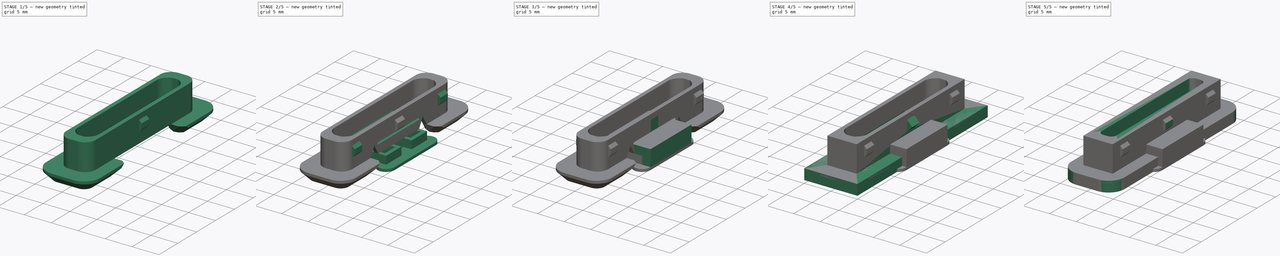
[diagram: build sequence overview — one tinted view per stage of 5, left to right]
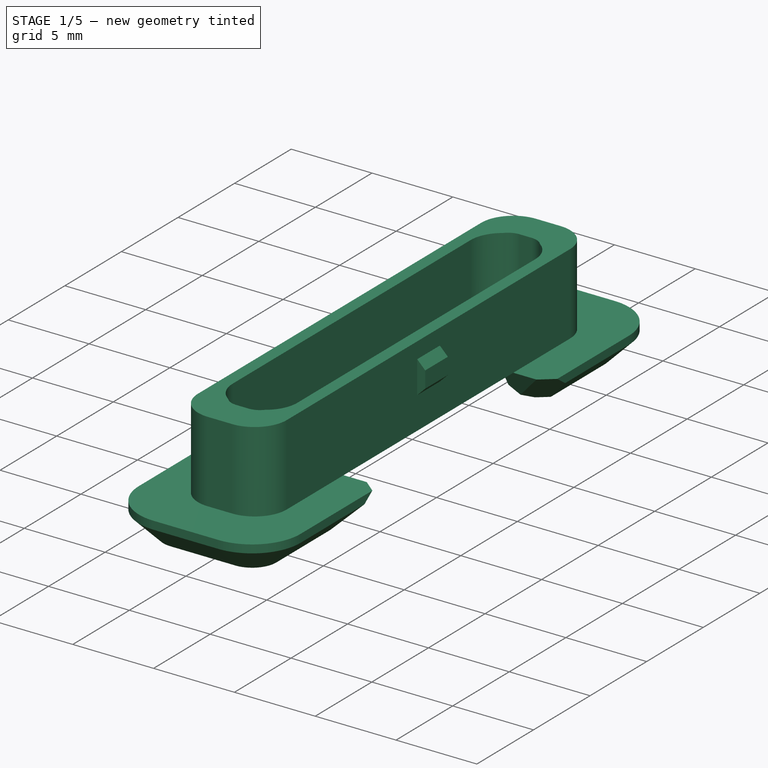
[diagram: stage 1 of 5 — iso view after this stage's code; geometry added in this stage tinted green]
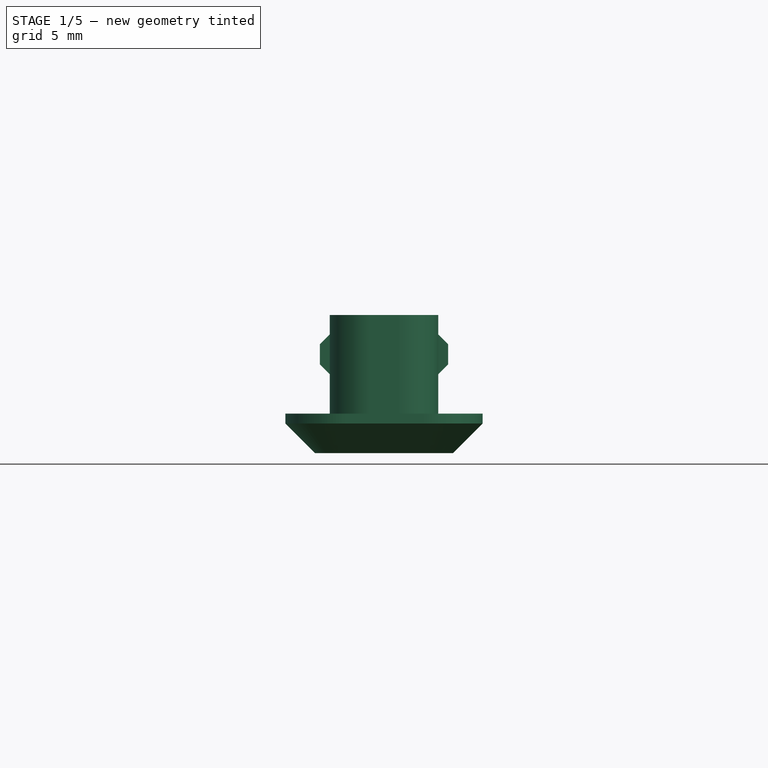
[diagram: stage 1 of 5 — front view after this stage's code; geometry added in this stage tinted green]
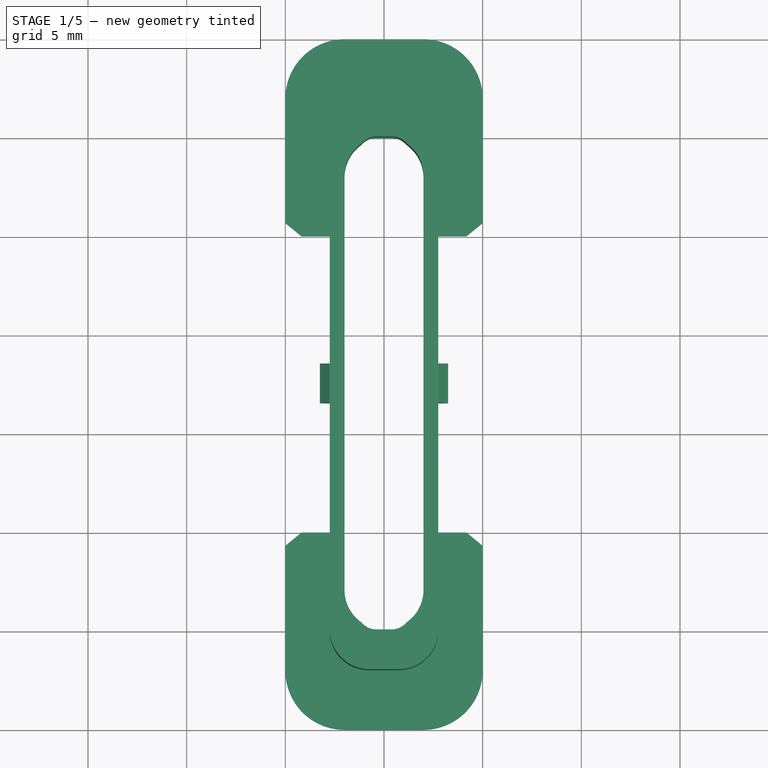
[diagram: stage 1 of 5 — top view after this stage's code; geometry added in this stage tinted green]
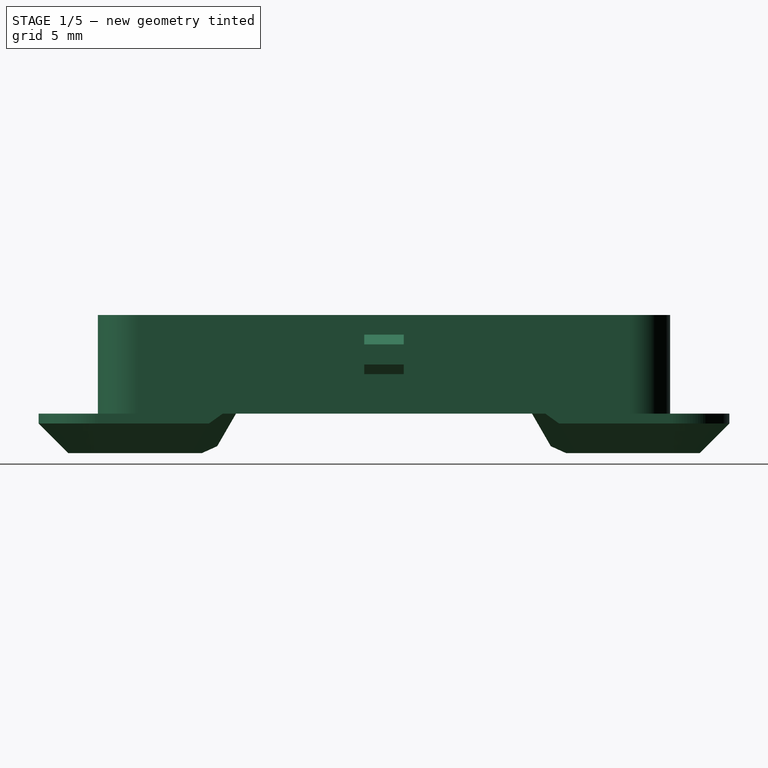
[diagram: stage 1 of 5 — right view after this stage's code; geometry added in this stage tinted green]
FCSTD DOCUMENT  (FreeCAD 0.16R5861 (Git))
Label: sd_card_bezel_v0.8
License: All rights reserved
LicenseURL: http://en.wikipedia.org/wiki/All_rights_reserved
objects: Sketcher::SketchObject×17, PartDesign::Pad×10, PartDesign::Chamfer×6, PartDesign::Pocket×5, PartDesign::Fillet×3, Part::Feature×2
note: 58 computed .brp shape members not serialized (recipe doc carries the construction recipe); baked Part::Feature solids carry a one-line shape summary decoded from their .brp

FEATURE [Part::Feature] Fillet001001  label="Fillet002"
  shape: bbox 10 x 35 x 7 mm, 37 faces (baked)
FEATURE [PartDesign::Fillet] Fillet001002
  Base = -> Fillet001001 [Edge36,Edge31,Edge29,Edge38]
  Radius = 2
FEATURE [PartDesign::Chamfer] Chamfer002
  Base = -> Fillet001002 [Edge41,Edge44,Edge48,Edge52,Edge56,Edge54,Edge50,Edge46,Edge89,Edge90,Edge91,Edge92,Edge93,Edge94,Edge95,Edge96]
  Size = 1.5
FEATURE [Sketcher::SketchObject] Sketch007
  ExternalGeometry = -> [Chamfer002]
  Support = -> Chamfer002 [Face8]
  sketch-geometry (6):
    g0: ArcOfCircle CenterX=5 CenterY=-28 CenterZ=0 NormalX=0 NormalY=0 NormalZ=1 Radius=2 StartAngle=3.14159 EndAngle=6.28319
    g1: ArcOfCircle CenterX=5 CenterY=-7 CenterZ=0 NormalX=0 NormalY=0 NormalZ=1 Radius=2 StartAngle=0 EndAngle=3.14159
    g2: LineSegment StartX=7 StartY=-28 StartZ=0 EndX=7 EndY=-7 EndZ=0
    g3: LineSegment StartX=3 StartY=-28 StartZ=0 EndX=3 EndY=-7 EndZ=0
    g4: LineSegment [constr] StartX=3 StartY=-32 StartZ=0 EndX=5 EndY=-28 EndZ=0
    g5: LineSegment [constr] StartX=5 StartY=-28 StartZ=0 EndX=7 EndY=-32 EndZ=0
  constraints (14):
    c: Tangent(g0,g3) = 1.5708
    c: Tangent(g0,g2) = -1.5708
    c: Tangent(g2,g1) = -1.5708
    c: Tangent(g3,g1) = 1.5708
    c: Vertical(g2)
    c: Equal(g0,g1)
    c: Coincident(g4,g-4)
    c: Coincident(g4,g0)
    c: Coincident(g4,g5)
    c: Coincident(g5,g-5)
    c: Equal(g5,g4)
    c: DistanceX(g0,g0) = -4
    c: DistanceY(g0,g5) = -4
    c: DistanceY(g2) = 21
FEATURE [PartDesign::Pocket] Pocket001
  Length = 5
  Sketch = -> Sketch007
  Type = 1
FEATURE [Sketcher::SketchObject] Sketch008
  ExternalGeometry = -> [Pocket001]
  Support = -> Pocket001 [Face18]
  sketch-geometry (9):
    g0: ArcOfCircle [constr] CenterX=10 CenterY=0 CenterZ=0 NormalX=0 NormalY=0 NormalZ=1 Radius=2 StartAngle=1.5708 EndAngle=4.71239
    g1: ArcOfCircle [constr] CenterX=25 CenterY=0 CenterZ=0 NormalX=0 NormalY=0 NormalZ=1 Radius=2 StartAngle=4.71239 EndAngle=7.85398
    g2: LineSegment [constr] StartX=10 StartY=-2 StartZ=0 EndX=25 EndY=-2 EndZ=0
    g3: LineSegment StartX=10 StartY=2 StartZ=0 EndX=25 EndY=2 EndZ=0
    g4: LineSegment [constr] StartX=5 StartY=7 StartZ=0 EndX=10 EndY=2 EndZ=0
    g5: LineSegment [constr] StartX=25 StartY=2 StartZ=0 EndX=30 EndY=7 EndZ=0
    g6: LineSegment StartX=10 StartY=2 StartZ=0 EndX=8.8453 EndY=0 EndZ=0
    g7: LineSegment StartX=8.8453 StartY=0 StartZ=0 EndX=26.1547 EndY=0 EndZ=0
    g8: LineSegment StartX=26.1547 StartY=0 StartZ=0 EndX=25 EndY=2 EndZ=0
  constraints (22):
    c: Tangent(g0,g3) = 1.5708
    c: Tangent(g0,g2) = -1.5708
    c: Tangent(g2,g1) = -1.5708
    c: Tangent(g3,g1) = 1.5708
    c: Horizontal(g2)
    c: Equal(g0,g1)
    c: PointOnObject(g0,g-1)
    c: DistanceX(g0,g1) = 15
    c: Radius(g0) = 2
    c: Coincident(g4,g0)
    c: Coincident(g5,g1)
    c: Coincident(g5,g-3)
    c: Equal(g5,g4)
    c: Coincident(g4,g-3)
    c: Coincident(g0,g6)
    c: Coincident(g6,g7)
    c: PointOnObject(g7,g-1)
    c: Horizontal(g7)
    c: Coincident(g7,g8)
    c: Coincident(g8,g1)
    c: Angle(g3,g8) = 2.0944
    c: Angle(g6,g3) = 2.0944
FEATURE [PartDesign::Pocket] Pocket002
  Length = 5
  Sketch = -> Sketch008
  Type = 1
FEATURE [PartDesign::Chamfer] Chamfer003
  Base = -> Pocket002 [Edge168,Edge183,Edge57,Edge53]
  Size = 1
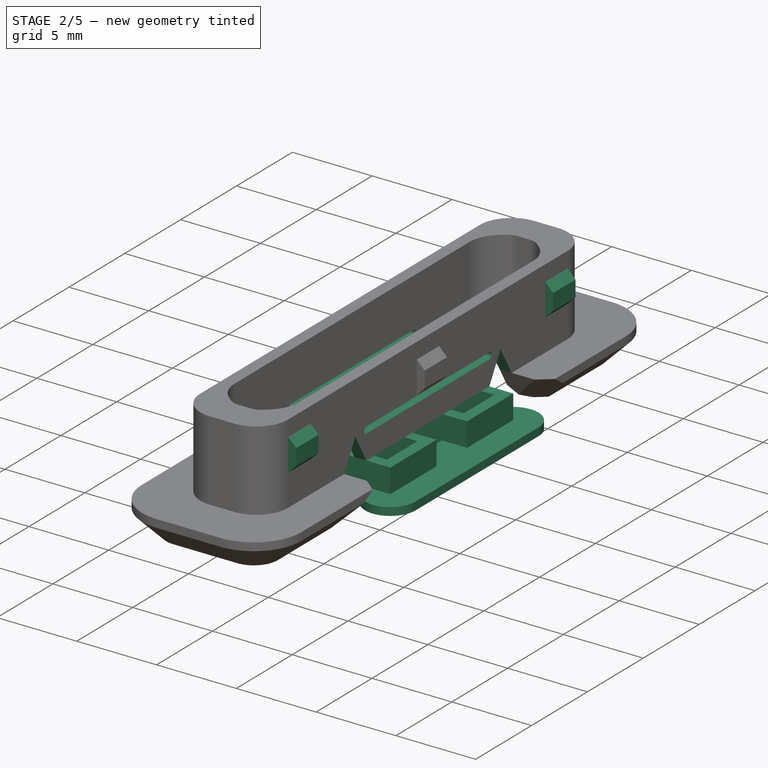
[diagram: stage 2 of 5 — iso view after this stage's code; geometry added in this stage tinted green]
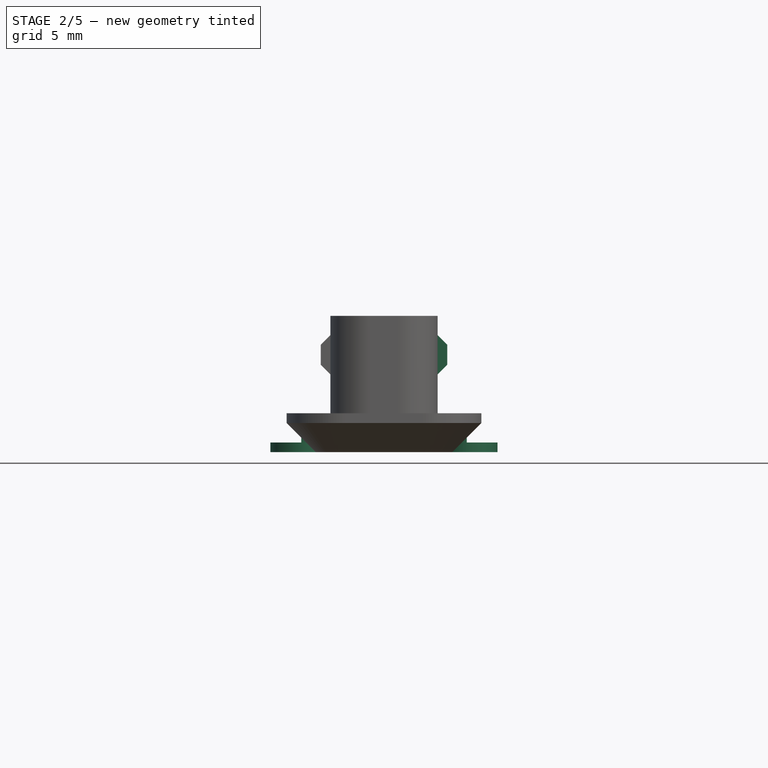
[diagram: stage 2 of 5 — front view after this stage's code; geometry added in this stage tinted green]
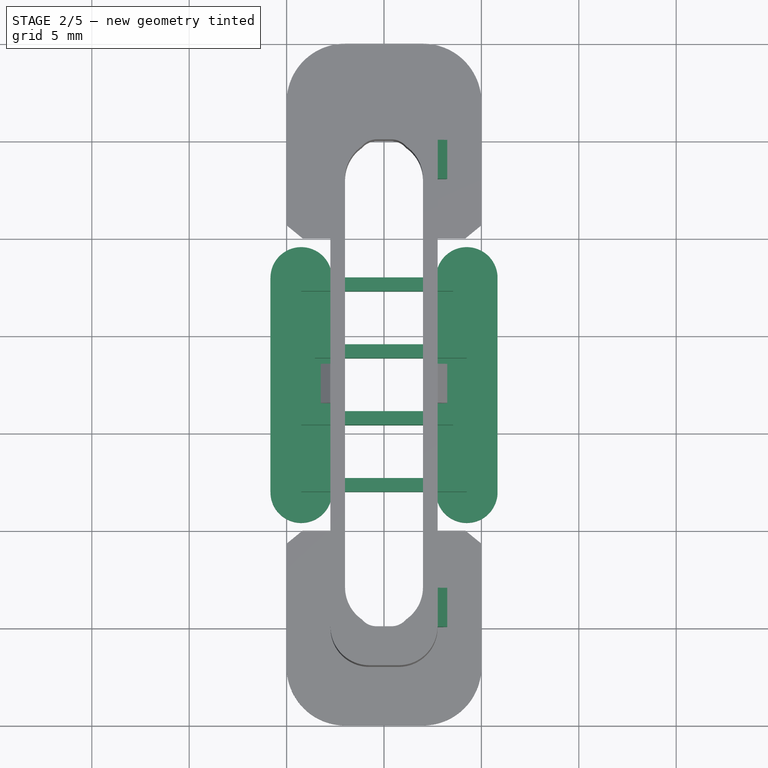
[diagram: stage 2 of 5 — top view after this stage's code; geometry added in this stage tinted green]
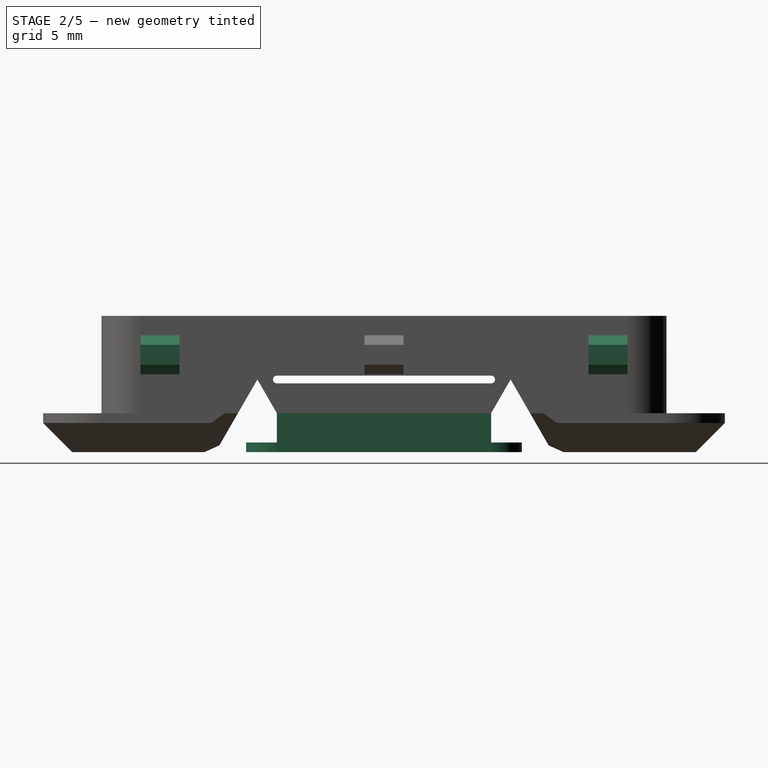
[diagram: stage 2 of 5 — right view after this stage's code; geometry added in this stage tinted green]
FEATURE [Sketcher::SketchObject] Sketch009
  ExternalGeometry = -> [Chamfer003]
  Support = -> Chamfer003 [Face18]
  sketch-geometry (16):
    g0: LineSegment StartX=0.75 StartY=-12.7 StartZ=0 EndX=8.55 EndY=-12.7 EndZ=0
    g1: LineSegment StartX=8.55 StartY=-12.7 StartZ=0 EndX=8.55 EndY=-15.4333 EndZ=0
    g2: LineSegment StartX=8.55 StartY=-15.4333 StartZ=0 EndX=0.75 EndY=-15.4333 EndZ=0
    g3: LineSegment StartX=0.75 StartY=-15.4333 StartZ=0 EndX=0.75 EndY=-19.5667 EndZ=0
    g4: LineSegment StartX=0.75 StartY=-19.5667 StartZ=0 EndX=8.55 EndY=-19.5667 EndZ=0
    g5: LineSegment StartX=8.55 StartY=-19.5667 StartZ=0 EndX=8.55 EndY=-22.3 EndZ=0
    g6: LineSegment StartX=8.55 StartY=-22.3 StartZ=0 EndX=0.75 EndY=-22.3 EndZ=0
    g7: LineSegment StartX=0.75 StartY=-22.3 StartZ=0 EndX=0.75 EndY=-23 EndZ=0
    g8: LineSegment StartX=0.75 StartY=-23 StartZ=0 EndX=9.25 EndY=-23 EndZ=0
    g9: LineSegment StartX=9.25 StartY=-23 StartZ=0 EndX=9.25 EndY=-18.8667 EndZ=0
    g10: LineSegment StartX=9.25 StartY=-18.8667 StartZ=0 EndX=1.45 EndY=-18.8667 EndZ=0
    g11: LineSegment StartX=1.45 StartY=-18.8667 StartZ=0 EndX=1.45 EndY=-16.1333 EndZ=0
    g12: LineSegment StartX=1.45 StartY=-16.1333 StartZ=0 EndX=9.25 EndY=-16.1333 EndZ=0
    g13: LineSegment StartX=9.25 StartY=-16.1333 StartZ=0 EndX=9.25 EndY=-12 EndZ=0
    g14: LineSegment StartX=9.25 StartY=-12 StartZ=0 EndX=0.75 EndY=-12 EndZ=0
    g15: LineSegment StartX=0.75 StartY=-12 StartZ=0 EndX=0.75 EndY=-12.7 EndZ=0
  constraints (49):
    c: Horizontal(g0)
    c: Coincident(g0,g1)
    c: Vertical(g1)
    c: Coincident(g1,g2)
    c: Horizontal(g2)
    c: Coincident(g2,g3)
    c: Vertical(g3)
    c: Coincident(g3,g4)
    c: Horizontal(g4)
    c: Coincident(g4,g5)
    c: Vertical(g5)
    c: Coincident(g5,g6)
    c: Horizontal(g6)
    c: Coincident(g6,g7)
    c: Vertical(g7)
    c: Coincident(g7,g8)
    c: Horizontal(g8)
    c: Coincident(g8,g9)
    c: Vertical(g9)
    c: Coincident(g9,g10)
    c: Horizontal(g10)
    c: Coincident(g10,g11)
    c: Vertical(g11)
    c: Coincident(g11,g12)
    c: Horizontal(g12)
    c: Coincident(g12,g13)
    c: Vertical(g13)
    c: Coincident(g13,g14)
    c: Horizontal(g14)
    c: Coincident(g14,g15)
    c: Coincident(g15,g0)
    c: Vertical(g15)
    c: Equal(g15,g7)
    c: DistanceY(g15) = -0.7
    c: Equal(g0,g2)
    c: Equal(g2,g12)
    c: Equal(g12,g10)
    c: Equal(g10,g4)
    c: Equal(g4,g6)
    c: Equal(g14,g8)
    c: DistanceX(g0,g13) = 0.7
    c: Equal(g11,g1)
    c: Equal(g1,g5)
    c: Equal(g9,g3)
    c: Equal(g3,g13)
    c: DistanceY(g14,g-4) = 2
    c: DistanceY(g-3,g7) = 2
    c: DistanceX(g-3,g7) = -1.5
    c: DistanceX(g-6,g8) = 1.5
FEATURE [PartDesign::Pad] Pad005
  Length = 2
  Length2 = 100
  Sketch = -> Sketch009
  Type = 0
FEATURE [Sketcher::SketchObject] Sketch010
  ExternalGeometry = -> [Pad005]
  Support = -> Pad005 [Face5]
  sketch-geometry (8):
    g0: ArcOfCircle CenterX=0.75 CenterY=-23 CenterZ=0 NormalX=0 NormalY=0 NormalZ=1 Radius=1.58 StartAngle=3.14159 EndAngle=6.28319
    g1: ArcOfCircle CenterX=0.75 CenterY=-12 CenterZ=0 NormalX=0 NormalY=0 NormalZ=1 Radius=1.58 StartAngle=0 EndAngle=3.14159
    g2: LineSegment StartX=2.33 StartY=-23 StartZ=0 EndX=2.33 EndY=-12 EndZ=0
    g3: LineSegment StartX=-0.83 StartY=-23 StartZ=0 EndX=-0.83 EndY=-12 EndZ=0
    g4: ArcOfCircle CenterX=9.25 CenterY=-12 CenterZ=0 NormalX=0 NormalY=0 NormalZ=1 Radius=1.58 StartAngle=0 EndAngle=3.14159
    g5: ArcOfCircle CenterX=9.25 CenterY=-23 CenterZ=0 NormalX=0 NormalY=0 NormalZ=1 Radius=1.58 StartAngle=3.14159 EndAngle=6.28319
    g6: LineSegment StartX=7.67 StartY=-12 StartZ=0 EndX=7.67 EndY=-23 EndZ=0
    g7: LineSegment StartX=10.83 StartY=-12 StartZ=0 EndX=10.83 EndY=-23 EndZ=0
  constraints (18):
    c: Tangent(g0,g3) = 1.5708
    c: Tangent(g0,g2) = -1.5708
    c: Tangent(g2,g1) = -1.5708
    c: Tangent(g3,g1) = 1.5708
    c: Vertical(g2)
    c: Equal(g0,g1)
    c: Coincident(g0,g-6)
    c: Tangent(g4,g7) = 1.5708
    c: Tangent(g4,g6) = -1.5708
    c: Tangent(g6,g5) = -1.5708
    c: Tangent(g7,g5) = 1.5708
    c: Vertical(g6)
    c: Equal(g4,g5)
    c: Coincident(g4,g-4)
    c: Coincident(g-5,g5)
    c: Coincident(g1,g-3)
    c: Equal(g4,g1)
    c: Radius(g4) = 1.58
FEATURE [PartDesign::Pad] Pad006
  Length = 0.5
  Length2 = 100
  Reversed = true
  Sketch = -> Sketch010
  Type = 0
FEATURE [Sketcher::SketchObject] Sketch011
  ExternalGeometry = -> [Pad006]
  Placement = pos=(2.25,0,0) rot=(0.57735,-0.57735,-0.57735;2.0944rad)
  Support = -> Pad006 [Face4]
  sketch-geometry (12):
    g0: LineSegment StartX=-25 StartY=2 StartZ=0 EndX=-24 EndY=3.73205 EndZ=0
    g1: LineSegment StartX=-24 StartY=3.73205 StartZ=0 EndX=-23 EndY=2 EndZ=0
    g2: LineSegment StartX=-12 StartY=2 StartZ=0 EndX=-11 EndY=3.73205 EndZ=0
    g3: LineSegment StartX=-11 StartY=3.73205 StartZ=0 EndX=-10 EndY=2 EndZ=0
    g4: ArcOfCircle CenterX=-23 CenterY=3.73205 CenterZ=0 NormalX=0 NormalY=0 NormalZ=1 Radius=0.2 StartAngle=1.5708 EndAngle=4.71239
    g5: ArcOfCircle CenterX=-12 CenterY=3.73205 CenterZ=0 NormalX=0 NormalY=0 NormalZ=1 Radius=0.2 StartAngle=4.71239 EndAngle=7.85398
    g6: LineSegment StartX=-23 StartY=3.53205 StartZ=0 EndX=-12 EndY=3.53205 EndZ=0
    g7: LineSegment StartX=-23 StartY=3.93205 StartZ=0 EndX=-12 EndY=3.93205 EndZ=0
    g8: LineSegment [constr] StartX=-23 StartY=3.73205 StartZ=0 EndX=-24 EndY=3.73205 EndZ=0
    g9: LineSegment [constr] StartX=-12 StartY=3.73205 StartZ=0 EndX=-11 EndY=3.73205 EndZ=0
    g10: LineSegment StartX=-25 StartY=2 StartZ=0 EndX=-23 EndY=2 EndZ=0
    g11: LineSegment StartX=-12 StartY=2 StartZ=0 EndX=-10 EndY=2 EndZ=0
  constraints (29):
    c: Coincident(g-6,g0)
    c: Coincident(g0,g1)
    c: Coincident(g1,g-6)
    c: Coincident(g-5,g2)
    c: Coincident(g2,g3)
    c: Coincident(g3,g-5)
    c: Tangent(g-4,g3)
    c: Tangent(g0,g-3)
    c: Equal(g2,g3)
    c: Equal(g3,g1)
    c: Equal(g1,g0)
    c: Tangent(g4,g7) = 1.5708
    c: Tangent(g4,g6) = -1.5708
    c: Tangent(g6,g5) = -1.5708
    c: Tangent(g7,g5) = 1.5708
    c: Horizontal(g6)
    c: Equal(g4,g5)
    c: Coincident(g8,g4)
    c: Coincident(g8,g0)
    c: Coincident(g9,g5)
    c: Coincident(g9,g2)
    c: Horizontal(g9)
    c: Equal(g9,g8)
    c: Radius(g4) = 0.2
    c: DistanceX(g9) = 1
    c: Coincident(g10,g0)
    c: Coincident(g10,g1)
    c: Coincident(g11,g2)
    c: Coincident(g11,g3)
FEATURE [PartDesign::Pocket] Pocket003
  Length = 5
  Sketch = -> Sketch011
  Type = 1
FEATURE [Sketcher::SketchObject] Sketch012
  ExternalGeometry = -> [Pocket003]
  Placement = pos=(7.75,0,0) rot=(0.57735,0.57735,0.57735;2.0944rad)
  Support = -> Pocket003 [Face51]
  sketch-geometry (8):
    g0: LineSegment StartX=5 StartY=6 StartZ=0 EndX=7 EndY=6 EndZ=0
    g1: LineSegment StartX=7 StartY=6 StartZ=0 EndX=7 EndY=4 EndZ=0
    g2: LineSegment StartX=7 StartY=4 StartZ=0 EndX=5 EndY=4 EndZ=0
    g3: LineSegment StartX=5 StartY=4 StartZ=0 EndX=5 EndY=6 EndZ=0
    g4: LineSegment StartX=30 StartY=6 StartZ=0 EndX=28 EndY=6 EndZ=0
    g5: LineSegment StartX=28 StartY=6 StartZ=0 EndX=28 EndY=4 EndZ=0
    g6: LineSegment StartX=28 StartY=4 StartZ=0 EndX=30 EndY=4 EndZ=0
    g7: LineSegment StartX=30 StartY=4 StartZ=0 EndX=30 EndY=6 EndZ=0
  constraints (24):
    c: Coincident(g0,g1)
    c: Coincident(g1,g2)
    c: Coincident(g2,g3)
    c: Coincident(g3,g0)
    c: Horizontal(g0)
    c: Horizontal(g2)
    c: Vertical(g1)
    c: Vertical(g3)
    c: PointOnObject(g0,g-4)
    c: PointOnObject(g-6,g2)
    c: PointOnObject(g-3,g0)
    c: Equal(g0,g-3)
    c: Coincident(g4,g5)
    c: Coincident(g5,g6)
    c: Coincident(g6,g7)
    c: Coincident(g7,g4)
    c: Horizontal(g4)
    c: Horizontal(g6)
    c: Vertical(g5)
    c: Vertical(g7)
    c: PointOnObject(g4,g-7)
    c: Equal(g4,g0)
    c: PointOnObject(g4,g0)
    c: PointOnObject(g5,g2)
FEATURE [PartDesign::Pad] Pad007
  Length = 0.5
  Length2 = 100
  Sketch = -> Sketch012
  Type = 0
FEATURE [PartDesign::Chamfer] Chamfer004
  Base = -> Pad007 [Edge420,Edge415,Edge408,Edge412]
  Size = 0.49
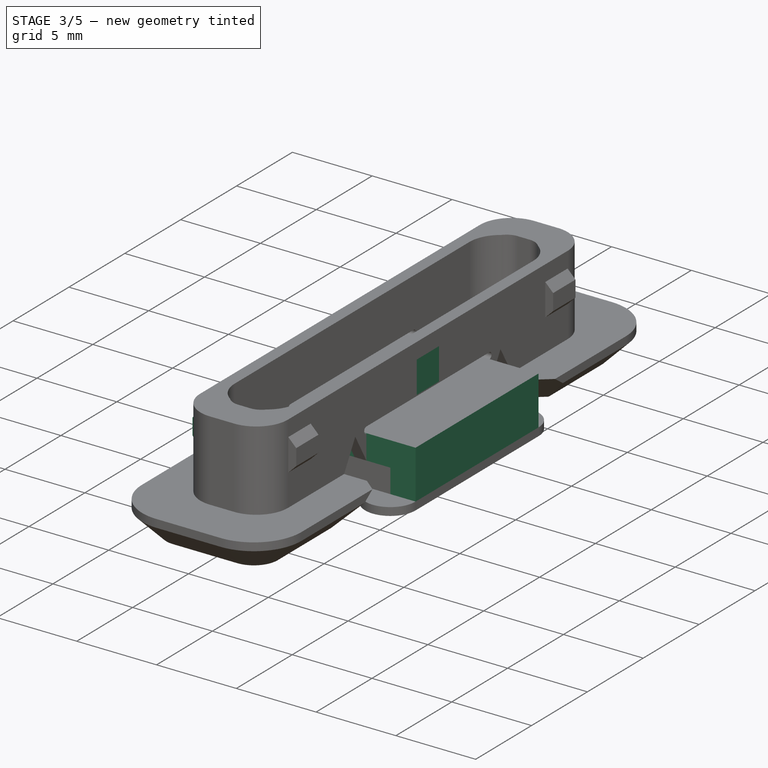
[diagram: stage 3 of 5 — iso view after this stage's code; geometry added in this stage tinted green]
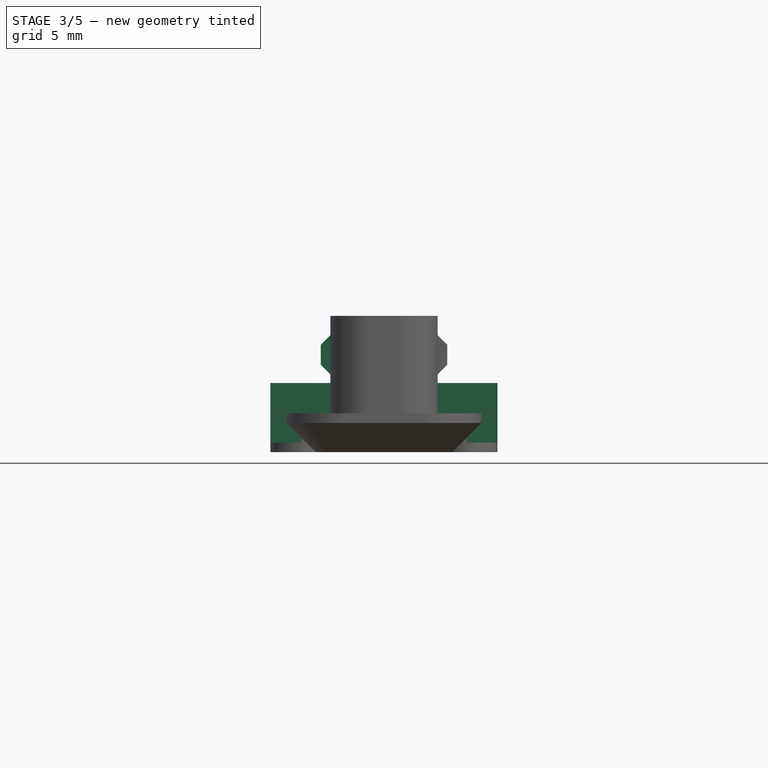
[diagram: stage 3 of 5 — front view after this stage's code; geometry added in this stage tinted green]
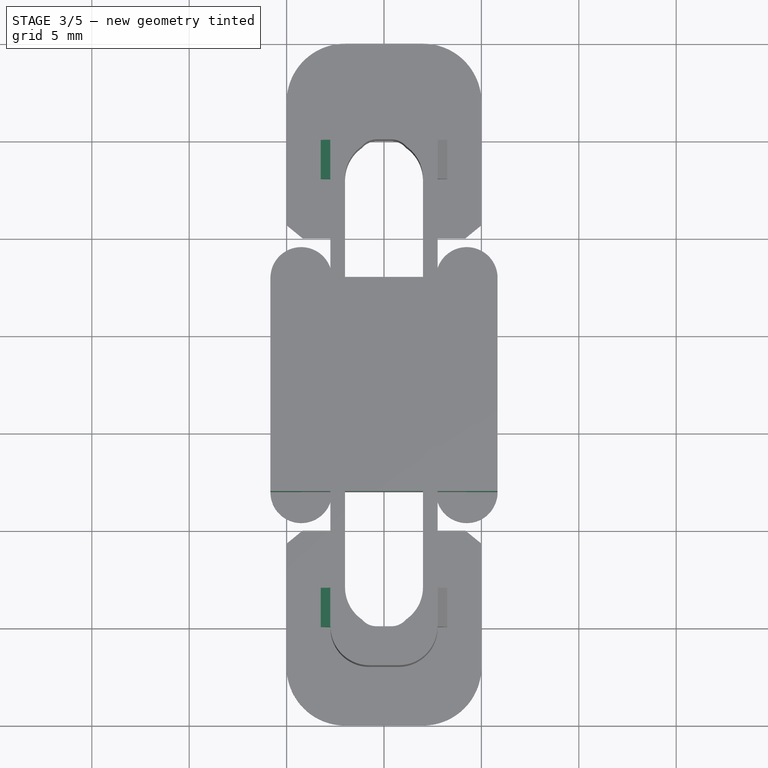
[diagram: stage 3 of 5 — top view after this stage's code; geometry added in this stage tinted green]
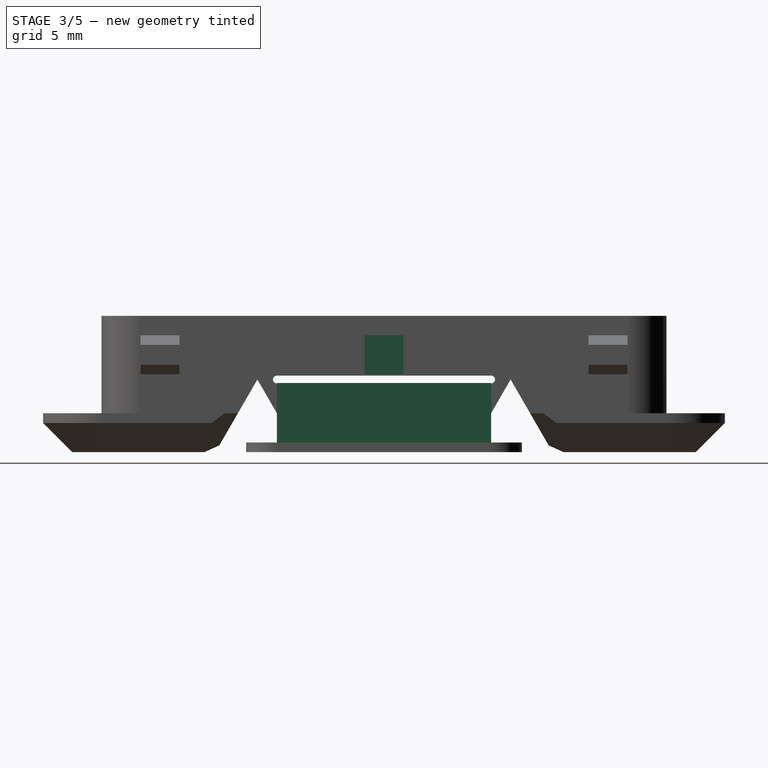
[diagram: stage 3 of 5 — right view after this stage's code; geometry added in this stage tinted green]
FEATURE [Sketcher::SketchObject] Sketch013
  ExternalGeometry = -> [Chamfer004]
  Placement = pos=(2.25,0,0) rot=(0.57735,-0.57735,-0.57735;2.0944rad)
  Support = -> Chamfer004 [Face35]
  sketch-geometry (8):
    g0: LineSegment StartX=-30 StartY=4 StartZ=0 EndX=-28 EndY=4 EndZ=0
    g1: LineSegment StartX=-28 StartY=4 StartZ=0 EndX=-28 EndY=6 EndZ=0
    g2: LineSegment StartX=-28 StartY=6 StartZ=0 EndX=-30 EndY=6 EndZ=0
    g3: LineSegment StartX=-30 StartY=6 StartZ=0 EndX=-30 EndY=4 EndZ=0
    g4: LineSegment StartX=-5 StartY=4 StartZ=0 EndX=-7 EndY=4 EndZ=0
    g5: LineSegment StartX=-7 StartY=4 StartZ=0 EndX=-7 EndY=6 EndZ=0
    g6: LineSegment StartX=-7 StartY=6 StartZ=0 EndX=-5 EndY=6 EndZ=0
    g7: LineSegment StartX=-5 StartY=6 StartZ=0 EndX=-5 EndY=4 EndZ=0
  constraints (24):
    c: Coincident(g0,g1)
    c: Coincident(g1,g2)
    c: Coincident(g2,g3)
    c: Coincident(g3,g0)
    c: Horizontal(g0)
    c: Horizontal(g2)
    c: Vertical(g1)
    c: Vertical(g3)
    c: PointOnObject(g0,g-3)
    c: Coincident(g4,g5)
    c: Coincident(g5,g6)
    c: Coincident(g6,g7)
    c: Coincident(g7,g4)
    c: Horizontal(g4)
    c: Horizontal(g6)
    c: Vertical(g5)
    c: Vertical(g7)
    c: PointOnObject(g4,g-7)
    c: Equal(g6,g-4)
    c: Equal(g-4,g2)
    c: PointOnObject(g-4,g2)
    c: PointOnObject(g5,g2)
    c: PointOnObject(g-6,g4)
    c: PointOnObject(g-6,g0)
FEATURE [PartDesign::Pad] Pad008
  Length = 0.5
  Length2 = 100
  Sketch = -> Sketch013
  Type = 0
FEATURE [PartDesign::Chamfer] Chamfer005
  Base = -> Pad008 [Edge397,Edge401,Edge384,Edge389]
  Size = 0.49
FEATURE [Sketcher::SketchObject] Sketch014
  ExternalGeometry = -> [Chamfer005]
  Placement = pos=(0,0,7) rot=(0,0,1;0rad)
  Support = -> Chamfer005 [Face26]
  sketch-geometry (8):
    g0: LineSegment StartX=7.75 StartY=18.5 StartZ=0 EndX=8.25 EndY=18.5 EndZ=0
    g1: LineSegment StartX=8.25 StartY=18.5 StartZ=0 EndX=8.25 EndY=16.5 EndZ=0
    g2: LineSegment StartX=8.25 StartY=16.5 StartZ=0 EndX=7.75 EndY=16.5 EndZ=0
    g3: LineSegment StartX=7.75 StartY=16.5 StartZ=0 EndX=7.75 EndY=18.5 EndZ=0
    g4: LineSegment StartX=2.25 StartY=16.5 StartZ=0 EndX=1.75 EndY=16.5 EndZ=0
    g5: LineSegment StartX=1.75 StartY=16.5 StartZ=0 EndX=1.75 EndY=18.5 EndZ=0
    g6: LineSegment StartX=1.75 StartY=18.5 StartZ=0 EndX=2.25 EndY=18.5 EndZ=0
    g7: LineSegment StartX=2.25 StartY=18.5 StartZ=0 EndX=2.25 EndY=16.5 EndZ=0
  constraints (22):
    c: Coincident(g0,g1)
    c: Coincident(g1,g2)
    c: Coincident(g2,g3)
    c: Coincident(g3,g0)
    c: Horizontal(g0)
    c: Horizontal(g2)
    c: Vertical(g1)
    c: Vertical(g3)
    c: PointOnObject(g0,g-4)
    c: Coincident(g1,g-6)
    c: Coincident(g4,g5)
    c: Coincident(g5,g6)
    c: Coincident(g6,g7)
    c: Coincident(g7,g4)
    c: Horizontal(g4)
    c: Horizontal(g6)
    c: Vertical(g5)
    c: Vertical(g7)
    c: PointOnObject(g4,g-3)
    c: Coincident(g5,g-5)
    c: PointOnObject(g5,g0)
    c: PointOnObject(g4,g2)
FEATURE [PartDesign::Pocket] Pocket004
  Length = 5
  Sketch = -> Sketch014
  Type = 0
FEATURE [Sketcher::SketchObject] Sketch015
  Placement = pos=(2.25,0,0) rot=(0.57735,-0.57735,-0.57735;2.0944rad)
  Support = -> Pocket004 [Face45]
FEATURE [Sketcher::SketchObject] Sketch016
  ExternalGeometry = -> [Pocket004]
  Placement = pos=(0,0,0) rot=(1,0,0;3.14159rad)
  Support = -> Pocket004 [Face154]
  sketch-geometry (4):
    g0: LineSegment StartX=-0.83 StartY=-12 StartZ=0 EndX=10.83 EndY=-12 EndZ=0
    g1: LineSegment StartX=10.83 StartY=-12 StartZ=0 EndX=10.83 EndY=-23 EndZ=0
    g2: LineSegment StartX=10.83 StartY=-23 StartZ=0 EndX=-0.83 EndY=-23 EndZ=0
    g3: LineSegment StartX=-0.83 StartY=-23 StartZ=0 EndX=-0.83 EndY=-12 EndZ=0
  constraints (10):
    c: Coincident(g0,g1)
    c: Coincident(g1,g2)
    c: Coincident(g2,g3)
    c: Coincident(g3,g0)
    c: Horizontal(g0)
    c: Horizontal(g2)
    c: Vertical(g1)
    c: Vertical(g3)
    c: Coincident(g0,g-3)
    c: Coincident(g1,g-4)
FEATURE [PartDesign::Pad] Pad009
  Length = 3.55
  Length2 = 100
  Reversed = true
  Sketch = -> Sketch016
  Type = 0
FEATURE [Part::Feature] Pad009001  label="Pad010"
  shape: bbox 11.66 x 35 x 7 mm, 115 faces (baked)
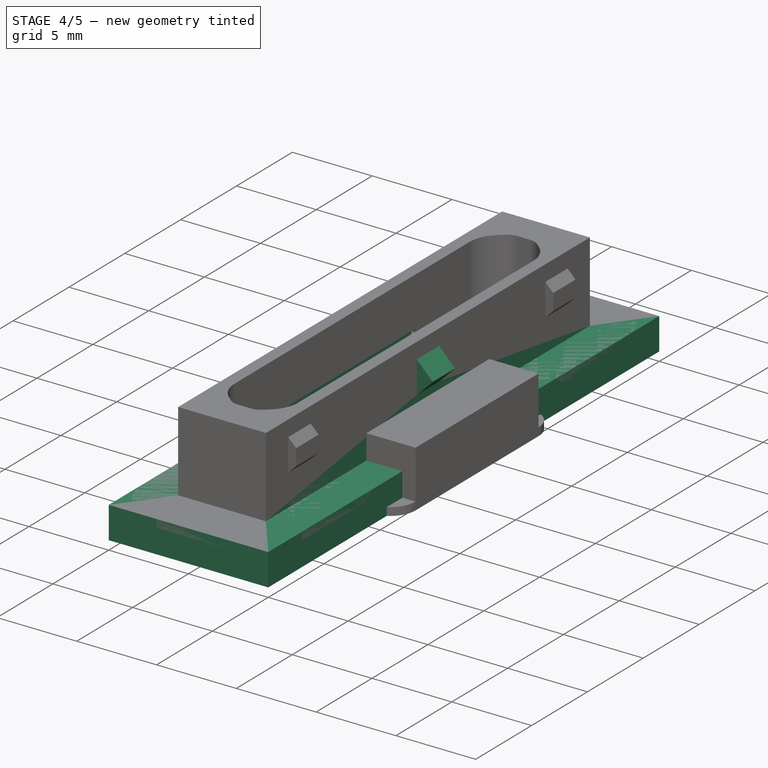
[diagram: stage 4 of 5 — iso view after this stage's code; geometry added in this stage tinted green]
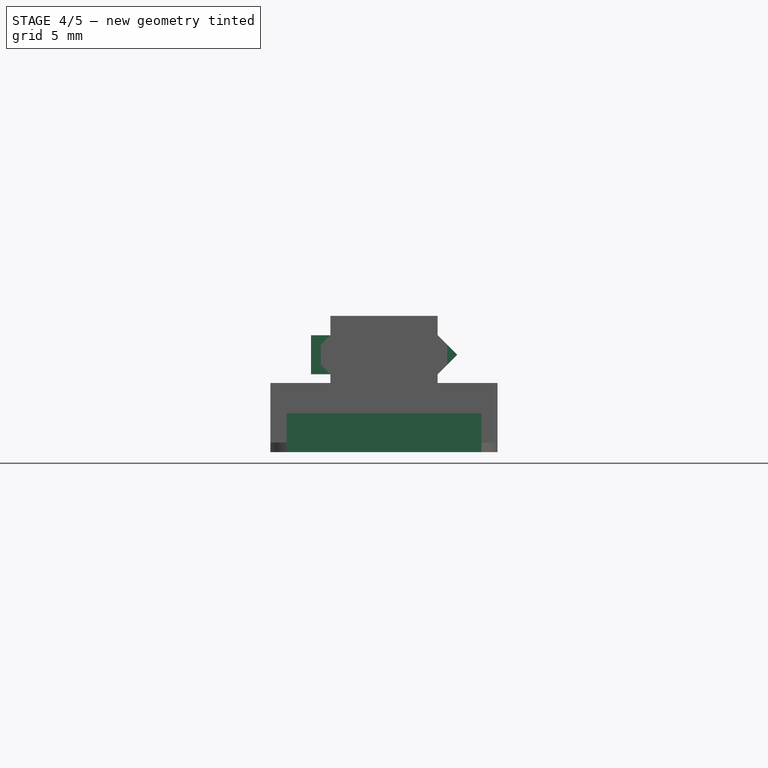
[diagram: stage 4 of 5 — front view after this stage's code; geometry added in this stage tinted green]
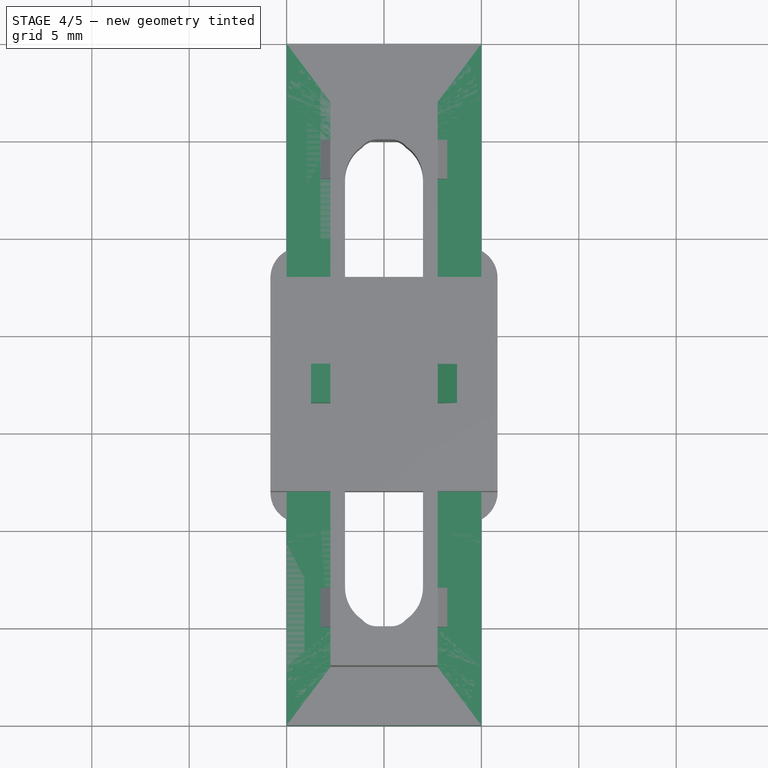
[diagram: stage 4 of 5 — top view after this stage's code; geometry added in this stage tinted green]
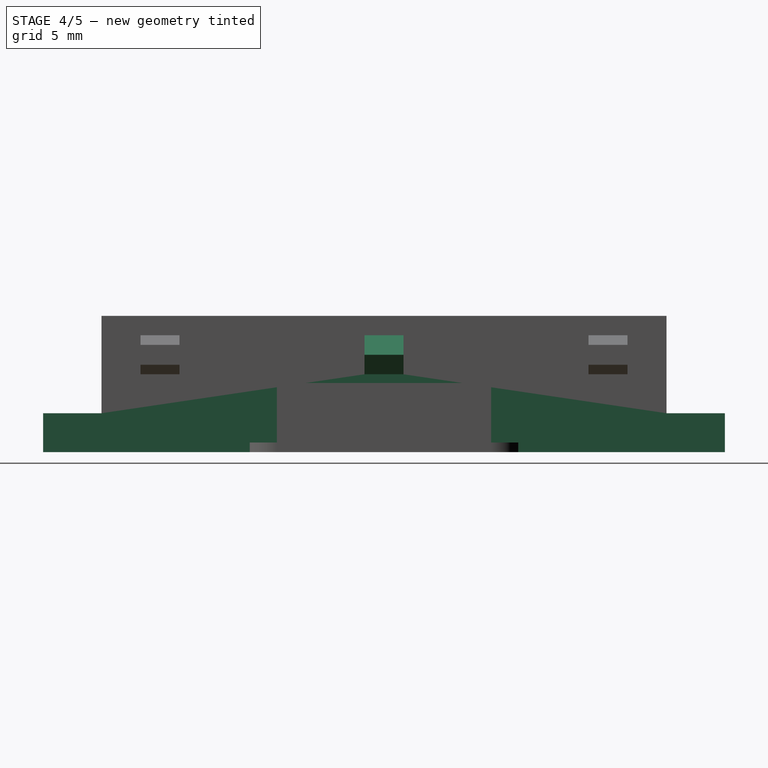
[diagram: stage 4 of 5 — right view after this stage's code; geometry added in this stage tinted green]
FEATURE [Sketcher::SketchObject] Sketch
  sketch-geometry (16):
    g0: LineSegment StartX=0 StartY=0 StartZ=0 EndX=10 EndY=0 EndZ=0
    g1: LineSegment StartX=10 StartY=0 StartZ=0 EndX=10 EndY=35 EndZ=0
    g2: LineSegment StartX=10 StartY=35 StartZ=0 EndX=0 EndY=35 EndZ=0
    g3: LineSegment StartX=0 StartY=35 StartZ=0 EndX=0 EndY=0 EndZ=0
    g4: LineSegment StartX=2.75 StartY=5 StartZ=0 EndX=7.25 EndY=5 EndZ=0
    g5: LineSegment StartX=7.25 StartY=5 StartZ=0 EndX=7.25 EndY=30 EndZ=0
    g6: LineSegment StartX=7.25 StartY=30 StartZ=0 EndX=2.75 EndY=30 EndZ=0
    g7: LineSegment StartX=2.75 StartY=30 StartZ=0 EndX=2.75 EndY=5 EndZ=0
    g8: LineSegment [constr] StartX=2.75 StartY=30 StartZ=0 EndX=0 EndY=30 EndZ=0
    g9: LineSegment [constr] StartX=0 StartY=30 StartZ=0 EndX=0 EndY=35 EndZ=0
    g10: LineSegment [constr] StartX=0 StartY=35 StartZ=0 EndX=2.75 EndY=35 EndZ=0
    g11: LineSegment [constr] StartX=2.75 StartY=35 StartZ=0 EndX=2.75 EndY=30 EndZ=0
    g12: LineSegment [constr] StartX=10 StartY=0 StartZ=0 EndX=7.25 EndY=0 EndZ=0
    g13: LineSegment [constr] StartX=7.25 StartY=0 StartZ=0 EndX=7.25 EndY=5 EndZ=0
    g14: LineSegment [constr] StartX=7.25 StartY=5 StartZ=0 EndX=10 EndY=5 EndZ=0
    g15: LineSegment [constr] StartX=10 StartY=5 StartZ=0 EndX=10 EndY=0 EndZ=0
  constraints (43):
    c: Coincident(g0,g1)
    c: Coincident(g1,g2)
    c: Coincident(g2,g3)
    c: Coincident(g3,g0)
    c: Horizontal(g0)
    c: Horizontal(g2)
    c: Vertical(g1)
    c: Vertical(g3)
    c: Coincident(g0,g-1)
    c: Coincident(g4,g5)
    c: Coincident(g5,g6)
    c: Coincident(g6,g7)
    c: Coincident(g7,g4)
    c: Horizontal(g4)
    c: Horizontal(g6)
    c: Vertical(g5)
    c: Vertical(g7)
    c: DistanceY(g7) = -25
    c: DistanceX(g6) = -4.5
    c: Coincident(g8,g9)
    c: Coincident(g9,g10)
    c: Coincident(g10,g11)
    c: Coincident(g11,g8)
    c: Horizontal(g8)
    c: Horizontal(g10)
    c: Vertical(g9)
    c: Vertical(g11)
    c: Coincident(g8,g6)
    c: Coincident(g9,g2)
    c: Coincident(g12,g13)
    c: Coincident(g13,g14)
    c: Coincident(g14,g15)
    c: Coincident(g15,g12)
    c: Horizontal(g12)
    c: Horizontal(g14)
    c: Vertical(g13)
    c: Vertical(g15)
    c: Coincident(g12,g0)
    c: Coincident(g13,g4)
    c: Equal(g14,g8)
    c: Equal(g11,g13)
    c: DistanceX(g2) = -10
    c: DistanceY(g3) = -35
FEATURE [PartDesign::Pad] Pad
  Length = 2
  Length2 = 100
  Sketch = -> Sketch
  Type = 0
FEATURE [Sketcher::SketchObject] Sketch001
  ExternalGeometry = -> [Pad]
  Support = -> Pad [Face10]
  sketch-geometry (16):
    g0: LineSegment StartX=2.75 StartY=30 StartZ=0 EndX=7.25 EndY=30 EndZ=0
    g1: LineSegment StartX=7.25 StartY=30 StartZ=0 EndX=7.25 EndY=5 EndZ=0
    g2: LineSegment StartX=7.25 StartY=5 StartZ=0 EndX=2.75 EndY=5 EndZ=0
    g3: LineSegment StartX=2.75 StartY=5 StartZ=0 EndX=2.75 EndY=30 EndZ=0
    g4: LineSegment StartX=7.75 StartY=3 StartZ=0 EndX=2.25 EndY=3 EndZ=0
    g5: LineSegment StartX=2.25 StartY=3 StartZ=0 EndX=2.25 EndY=32 EndZ=0
    g6: LineSegment StartX=2.25 StartY=32 StartZ=0 EndX=7.75 EndY=32 EndZ=0
    g7: LineSegment StartX=7.75 StartY=32 StartZ=0 EndX=7.75 EndY=3 EndZ=0
    g8: LineSegment [constr] StartX=2.75 StartY=30 StartZ=0 EndX=2.25 EndY=30 EndZ=0
    g9: LineSegment [constr] StartX=2.25 StartY=30 StartZ=0 EndX=2.25 EndY=32 EndZ=0
    g10: LineSegment [constr] StartX=2.25 StartY=32 StartZ=0 EndX=2.75 EndY=32 EndZ=0
    g11: LineSegment [constr] StartX=2.75 StartY=32 StartZ=0 EndX=2.75 EndY=30 EndZ=0
    g12: LineSegment [constr] StartX=7.75 StartY=3 StartZ=0 EndX=7.25 EndY=3 EndZ=0
    g13: LineSegment [constr] StartX=7.25 StartY=3 StartZ=0 EndX=7.25 EndY=5 EndZ=0
    g14: LineSegment [constr] StartX=7.25 StartY=5 StartZ=0 EndX=7.75 EndY=5 EndZ=0
    g15: LineSegment [constr] StartX=7.75 StartY=5 StartZ=0 EndX=7.75 EndY=3 EndZ=0
  constraints (42):
    c: Coincident(g0,g1)
    c: Coincident(g1,g2)
    c: Coincident(g2,g3)
    c: Coincident(g3,g0)
    c: Horizontal(g0)
    c: Horizontal(g2)
    c: Vertical(g1)
    c: Vertical(g3)
    c: Coincident(g0,g-3)
    c: Coincident(g1,g-4)
    c: Coincident(g4,g5)
    c: Coincident(g5,g6)
    c: Coincident(g6,g7)
    c: Coincident(g7,g4)
    c: Horizontal(g4)
    c: Horizontal(g6)
    c: Vertical(g5)
    c: Vertical(g7)
    c: Coincident(g8,g9)
    c: Coincident(g9,g10)
    c: Coincident(g10,g11)
    c: Coincident(g11,g8)
    c: Horizontal(g8)
    c: Horizontal(g10)
    c: Vertical(g9)
    c: Vertical(g11)
    c: Coincident(g8,g0)
    c: Coincident(g9,g5)
    c: Coincident(g12,g13)
    c: Coincident(g13,g14)
    c: Coincident(g14,g15)
    c: Coincident(g15,g12)
    c: Horizontal(g12)
    c: Horizontal(g14)
    c: Vertical(g13)
    c: Vertical(g15)
    c: Coincident(g12,g4)
    c: Coincident(g13,g1)
    c: Equal(g8,g14)
    c: Equal(g13,g11)
    c: DistanceX(g6) = 5.5
    c: DistanceY(g5) = 29
FEATURE [PartDesign::Pad] Pad001
  Length = 5
  Length2 = 100
  Sketch = -> Sketch001
  Type = 0
FEATURE [Sketcher::SketchObject] Sketch002
  ExternalGeometry = -> [Pad001]
  Support = -> Pad001 [Face14]
  sketch-geometry (6):
    g0: LineSegment StartX=16.5 StartY=4 StartZ=0 EndX=18.5 EndY=4 EndZ=0
    g1: LineSegment StartX=18.5 StartY=4 StartZ=0 EndX=18.5 EndY=6 EndZ=0
    g2: LineSegment StartX=18.5 StartY=6 StartZ=0 EndX=16.5 EndY=6 EndZ=0
    g3: LineSegment StartX=16.5 StartY=6 StartZ=0 EndX=16.5 EndY=4 EndZ=0
    g4: LineSegment [constr] StartX=3 StartY=7 StartZ=0 EndX=16.5 EndY=6 EndZ=0
    g5: LineSegment [constr] StartX=18.5 StartY=6 StartZ=0 EndX=32 EndY=7 EndZ=0
  constraints (16):
    c: Coincident(g0,g1)
    c: Coincident(g1,g2)
    c: Coincident(g2,g3)
    c: Coincident(g3,g0)
    c: Horizontal(g0)
    c: Horizontal(g2)
    c: Vertical(g1)
    c: Vertical(g3)
    c: Coincident(g4,g-3)
    c: Coincident(g4,g2)
    c: Coincident(g5,g1)
    c: Coincident(g-3,g5)
    c: Equal(g5,g4)
    c: Equal(g2,g3)
    c: DistanceX(g2) = -2
    c: DistanceY(g-4,g0) = 2
FEATURE [PartDesign::Pad] Pad002
  Length = 1
  Length2 = 100
  Sketch = -> Sketch002
  Type = 0
FEATURE [PartDesign::Chamfer] Chamfer
  Base = -> Pad002 [Edge56,Edge52]
  Size = 0.99
FEATURE [Sketcher::SketchObject] Sketch003
  ExternalGeometry = -> [Chamfer]
  Support = -> Chamfer [Face13]
  sketch-geometry (6):
    g0: LineSegment StartX=-18.5 StartY=4 StartZ=0 EndX=-16.5 EndY=4 EndZ=0
    g1: LineSegment StartX=-16.5 StartY=4 StartZ=0 EndX=-16.5 EndY=6 EndZ=0
    g2: LineSegment StartX=-16.5 StartY=6 StartZ=0 EndX=-18.5 EndY=6 EndZ=0
    g3: LineSegment StartX=-18.5 StartY=6 StartZ=0 EndX=-18.5 EndY=4 EndZ=0
    g4: LineSegment [constr] StartX=-32 StartY=7 StartZ=0 EndX=-18.5 EndY=6 EndZ=0
    g5: LineSegment [constr] StartX=-16.5 StartY=6 StartZ=0 EndX=-3 EndY=7 EndZ=0
  constraints (16):
    c: Coincident(g0,g1)
    c: Coincident(g1,g2)
    c: Coincident(g2,g3)
    c: Coincident(g3,g0)
    c: Horizontal(g0)
    c: Horizontal(g2)
    c: Vertical(g1)
    c: Vertical(g3)
    c: Coincident(g4,g-4)
    c: Coincident(g4,g2)
    c: Coincident(g5,g1)
    c: Coincident(g5,g-4)
    c: Equal(g5,g4)
    c: Equal(g3,g2)
    c: DistanceY(g3) = -2
    c: DistanceY(g-3,g0) = 2
FEATURE [PartDesign::Pad] Pad003
  Length = 1
  Length2 = 100
  Sketch = -> Sketch003
  Type = 0
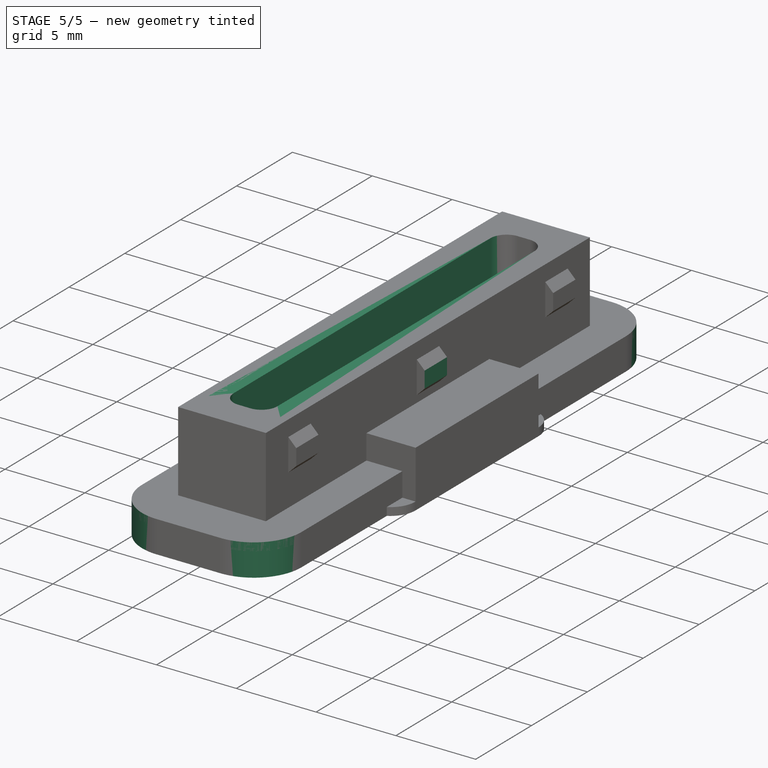
[diagram: stage 5 of 5 — iso view after this stage's code; geometry added in this stage tinted green]
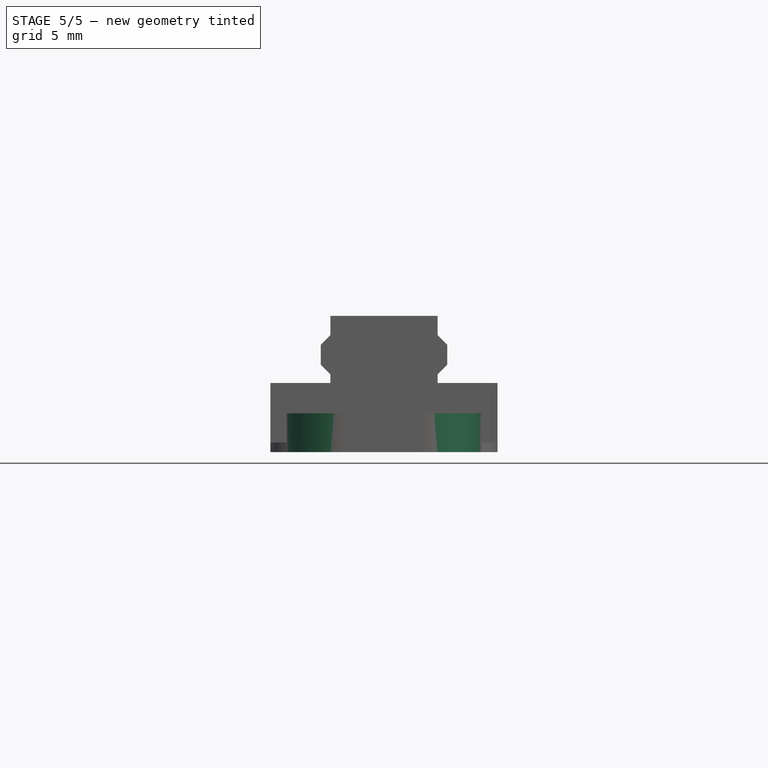
[diagram: stage 5 of 5 — front view after this stage's code; geometry added in this stage tinted green]
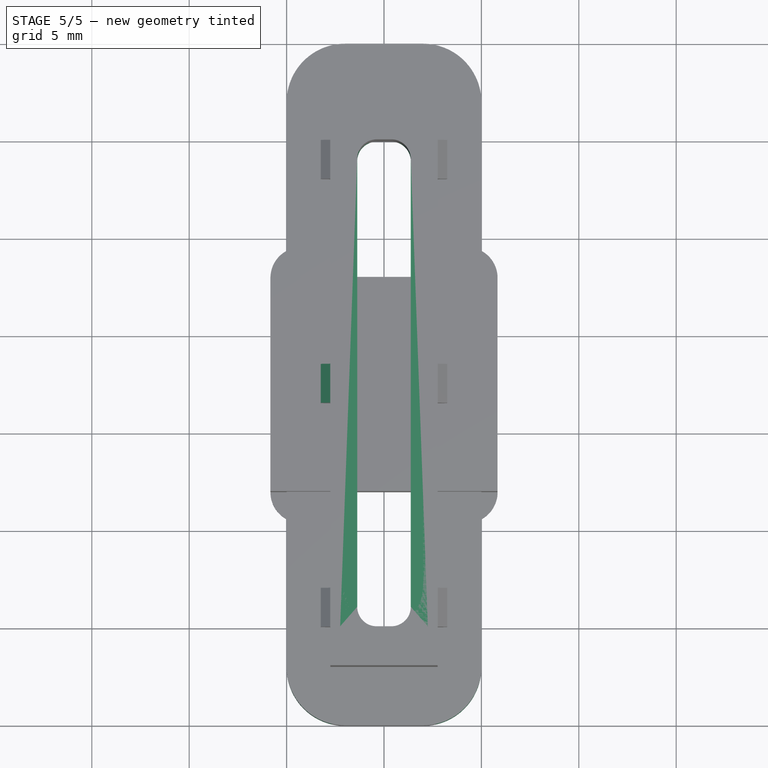
[diagram: stage 5 of 5 — top view after this stage's code; geometry added in this stage tinted green]
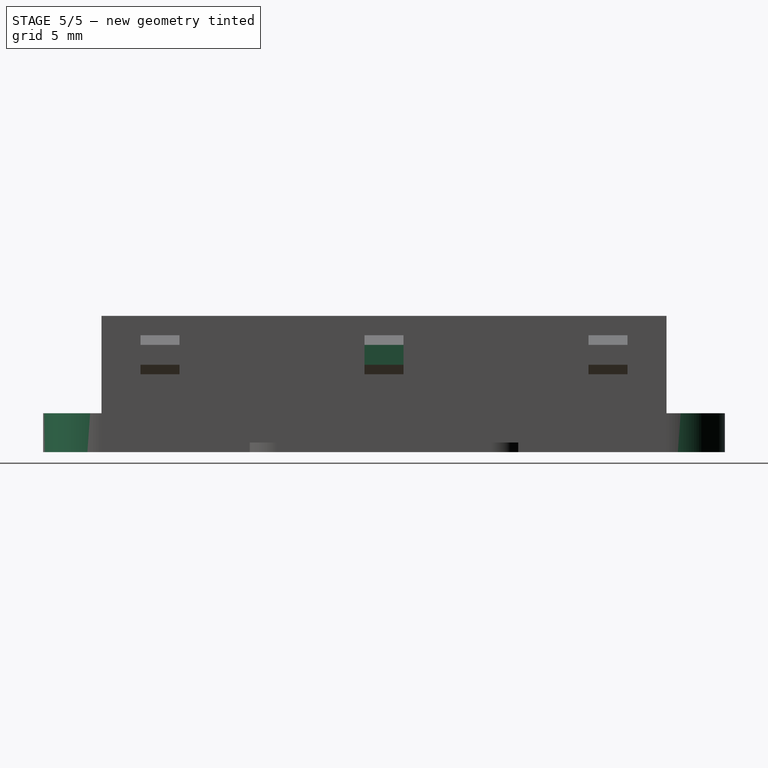
[diagram: stage 5 of 5 — right view after this stage's code; geometry added in this stage tinted green]
FEATURE [PartDesign::Chamfer] Chamfer001
  Base = -> Pad003 [Edge1,Edge3]
  Size = 0.99
FEATURE [Sketcher::SketchObject] Sketch004
  ExternalGeometry = -> [Chamfer001]
  Support = -> Chamfer001 [Face14]
  sketch-geometry (8):
    g0: LineSegment StartX=0.75 StartY=6 StartZ=0 EndX=1.75 EndY=6 EndZ=0
    g1: LineSegment StartX=1.75 StartY=6 StartZ=0 EndX=1.75 EndY=4 EndZ=0
    g2: LineSegment StartX=1.75 StartY=4 StartZ=0 EndX=0.75 EndY=4 EndZ=0
    g3: LineSegment StartX=0.75 StartY=4 StartZ=0 EndX=0.75 EndY=6 EndZ=0
    g4: LineSegment StartX=9.25 StartY=4 StartZ=0 EndX=8.25 EndY=4 EndZ=0
    g5: LineSegment StartX=8.25 StartY=4 StartZ=0 EndX=8.25 EndY=6 EndZ=0
    g6: LineSegment StartX=8.25 StartY=6 StartZ=0 EndX=9.25 EndY=6 EndZ=0
    g7: LineSegment StartX=9.25 StartY=6 StartZ=0 EndX=9.25 EndY=4 EndZ=0
  constraints (24):
    c: Coincident(g0,g1)
    c: Coincident(g1,g2)
    c: Coincident(g2,g3)
    c: Coincident(g3,g0)
    c: Horizontal(g0)
    c: Horizontal(g2)
    c: Vertical(g1)
    c: Vertical(g3)
    c: Coincident(g4,g5)
    c: Coincident(g5,g6)
    c: Coincident(g6,g7)
    c: Coincident(g7,g4)
    c: Horizontal(g4)
    c: Horizontal(g6)
    c: Vertical(g5)
    c: Vertical(g7)
    c: PointOnObject(g5,g0)
    c: DistanceY(g0,g-3) = 1
    c: DistanceX(g0,g-3) = 0.5
    c: DistanceX(g5,g-4) = -0.5
    c: Equal(g1,g5)
    c: DistanceY(g7) = -2
    c: Equal(g2,g4)
    c: DistanceX(g4) = -1
FEATURE [PartDesign::Pocket] Pocket
  Length = 5
  Sketch = -> Sketch004
  Type = 1
FEATURE [PartDesign::Fillet] Fillet
  Base = -> Pocket [Edge43,Edge44,Edge46,Edge48]
  Radius = 3
FEATURE [Sketcher::SketchObject] Sketch005
  Placement = pos=(0,0,0) rot=(1,0,0;3.14159rad)
  Support = -> Fillet [Face14]
FEATURE [Sketcher::SketchObject] Sketch006
  ExternalGeometry = -> [Fillet]
  Support = -> Fillet [Face15]
  sketch-geometry (8):
    g0: LineSegment StartX=2.25 StartY=32 StartZ=0 EndX=3.625 EndY=32 EndZ=0
    g1: LineSegment StartX=3.625 StartY=32 StartZ=0 EndX=3.625 EndY=3 EndZ=0
    g2: LineSegment StartX=3.625 StartY=3 StartZ=0 EndX=2.25 EndY=3 EndZ=0
    g3: LineSegment StartX=2.25 StartY=3 StartZ=0 EndX=2.25 EndY=32 EndZ=0
    g4: LineSegment StartX=7.75 StartY=32 StartZ=0 EndX=6.375 EndY=32 EndZ=0
    g5: LineSegment StartX=6.375 StartY=32 StartZ=0 EndX=6.375 EndY=3 EndZ=0
    g6: LineSegment StartX=6.375 StartY=3 StartZ=0 EndX=7.75 EndY=3 EndZ=0
    g7: LineSegment StartX=7.75 StartY=3 StartZ=0 EndX=7.75 EndY=32 EndZ=0
  constraints (22):
    c: Coincident(g0,g1)
    c: Coincident(g1,g2)
    c: Coincident(g2,g3)
    c: Coincident(g3,g0)
    c: Horizontal(g0)
    c: Horizontal(g2)
    c: Vertical(g1)
    c: Vertical(g3)
    c: Coincident(g0,g-3)
    c: Coincident(g4,g5)
    c: Coincident(g5,g6)
    c: Coincident(g6,g7)
    c: Coincident(g7,g4)
    c: Horizontal(g4)
    c: Horizontal(g6)
    c: Vertical(g5)
    c: Vertical(g7)
    c: Coincident(g4,g-4)
    c: Coincident(g-4,g6)
    c: Coincident(g-3,g2)
    c: Equal(g4,g0)
    c: DistanceX(g4,g0) = -2.75
FEATURE [PartDesign::Pad] Pad004
  Length = 7
  Length2 = 100
  Reversed = true
  Sketch = -> Sketch006
  Type = 0
FEATURE [PartDesign::Fillet] Fillet001
  Base = -> Pad004 [Edge84,Edge85,Edge88,Edge83]
  Radius = 1
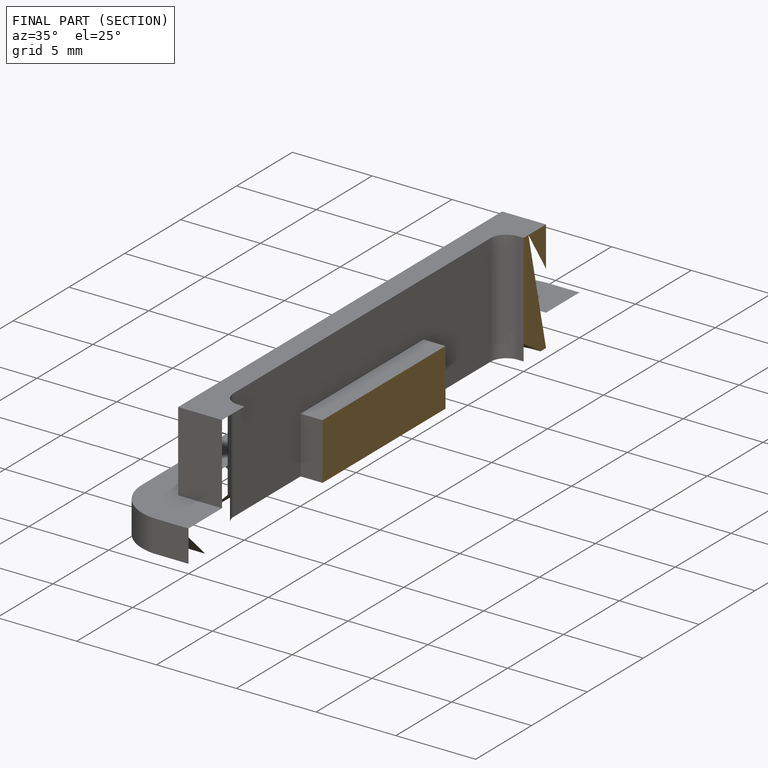
[diagram: finished part — half-section view (interior)]
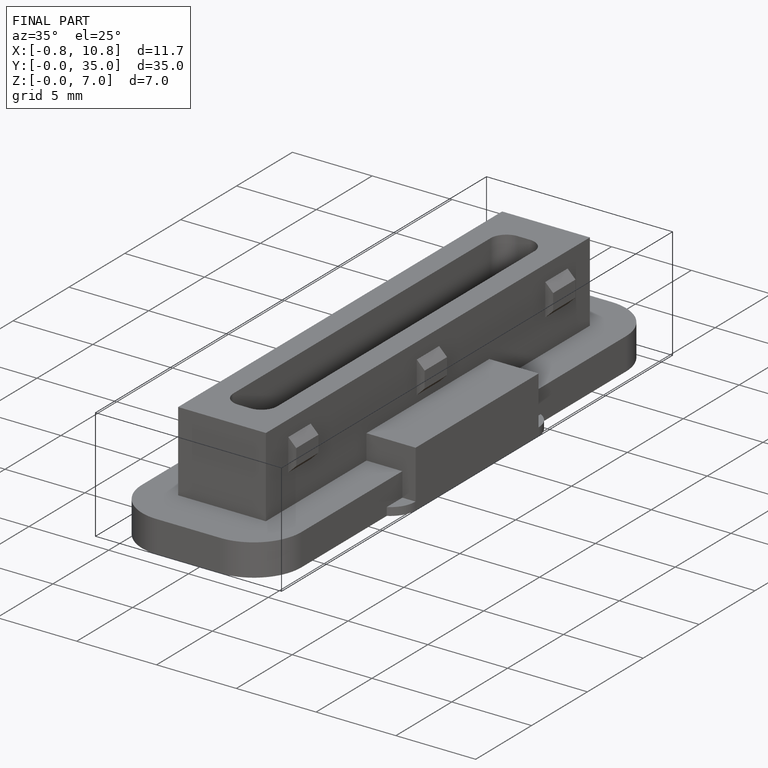
[diagram: finished part — iso view with bounding-box wireframe]
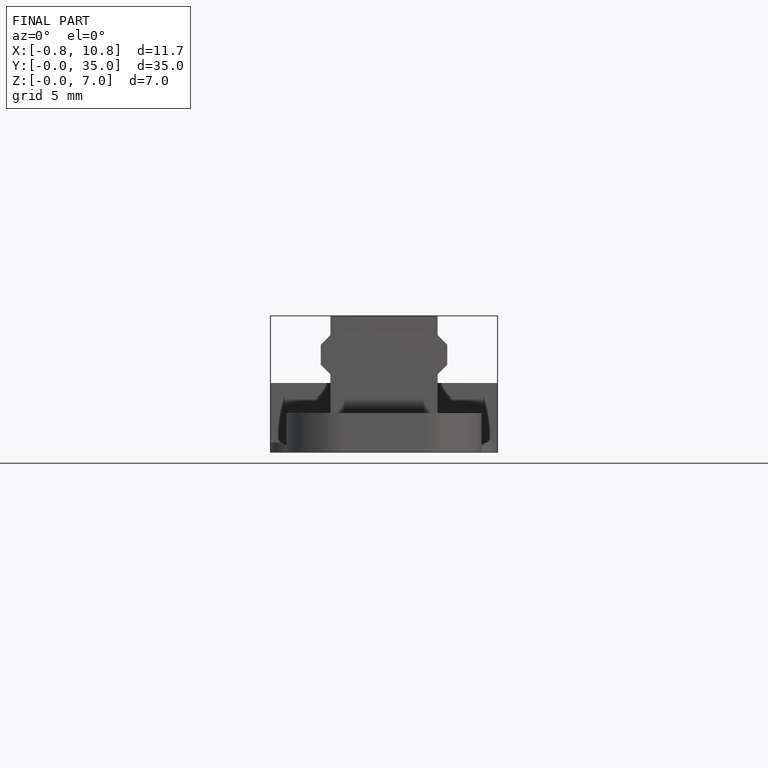
[diagram: finished part — front view with bounding-box wireframe]
